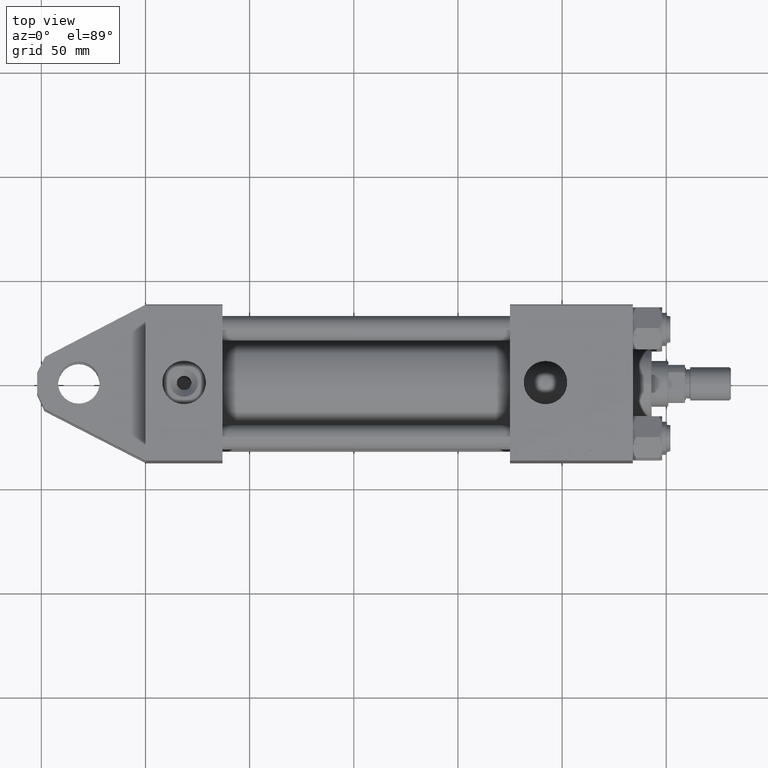
[diagram: clean part render]
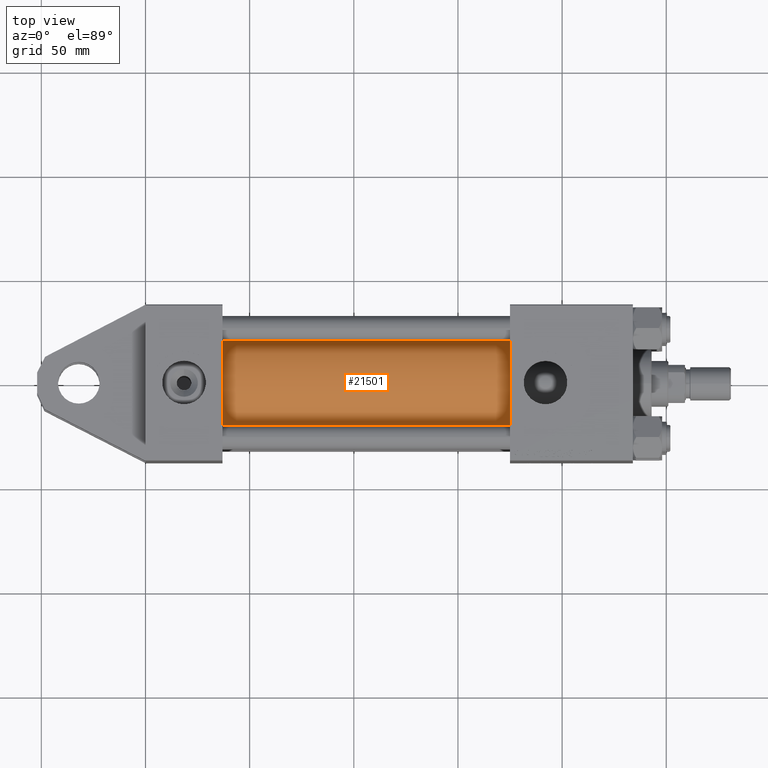
[diagram: same view with one face highlighted and labeled with its STEP entity id]
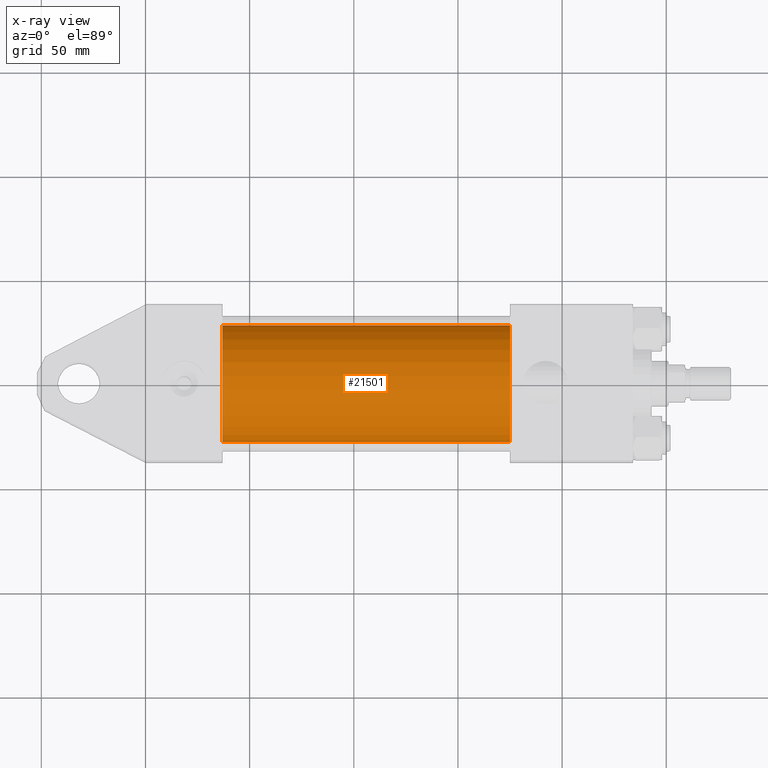
[diagram: x-ray of the same camera — body ghosted, the highlighted face saturated]
A machine part, top view. The second image highlights one B-rep face of the part: STEP entity #21501.
The next image is the same camera in x-ray: the body ghosted, the highlighted face saturated — about 0% of this face is hidden behind the body in this view.
In plain terms, the highlighted cylindrical surface (partial cylindrical patch) has radius 28 mm, axis along (-1, -0, 0).
Its self-contained STEP definition (entity closure, byte-faithful):
#4064 = EDGE_CURVE ( 'NONE', #9242, #27730, #26374, .T. ) ;
#5135 = ORIENTED_EDGE ( 'NONE', *, *, #16017, .T. ) ;
#6309 = CARTESIAN_POINT ( 'NONE',  ( 175.0000000000000284, -4.043591434102509780E-17, -28.00000000000000000 ) ) ;
#9137 = VERTEX_POINT ( 'NONE', #10559 ) ;
#9242 = VERTEX_POINT ( 'NONE', #16881 ) ;
#10030 = EDGE_CURVE ( 'NONE', #49548, #9242, #13061, .T. ) ;
#10559 = CARTESIAN_POINT ( 'NONE',  ( 37.00000000000000711, -3.469446951953614189E-15, 28.00000000000000000 ) ) ;
#11157 = ORIENTED_EDGE ( 'NONE', *, *, #10030, .F. ) ;
#13061 = CIRCLE ( 'NONE', #44218, 28.00000000000000000 ) ;
#15412 = EDGE_CURVE ( 'NONE', #49548, #9137, #36548, .T. ) ;
#16017 = EDGE_CURVE ( 'NONE', #9137, #27730, #22980, .T. ) ;
#16881 = CARTESIAN_POINT ( 'NONE',  ( 175.0000000000000284, -4.043591434102509780E-17, -28.00000000000000000 ) ) ;
#19596 = VECTOR ( 'NONE', #24157, 1000.000000000000000 ) ;
#19681 = CARTESIAN_POINT ( 'NONE',  ( 175.0000000000000284, -3.469446951953614189E-15, 0.000000000000000000 ) ) ;
#21299 = AXIS2_PLACEMENT_3D ( 'NONE', #45646, #33495, #49594 ) ;
#21501 = ADVANCED_FACE ( 'NONE', ( #27553 ), #31508, .T. ) ;
#21887 = EDGE_LOOP ( 'NONE', ( #39748, #11157, #47906, #5135 ) ) ;
#22427 = DIRECTION ( 'NONE',  ( -1.000000000000000000, -0.000000000000000000, -0.000000000000000000 ) ) ;
#22980 = CIRCLE ( 'NONE', #21299, 28.00000000000000000 ) ;
#24157 = DIRECTION ( 'NONE',  ( -1.000000000000000000, -0.000000000000000000, -0.000000000000000000 ) ) ;
#26374 = LINE ( 'NONE', #6309, #44179 ) ;
#27553 = FACE_OUTER_BOUND ( 'NONE', #21887, .T. ) ;
#27730 = VERTEX_POINT ( 'NONE', #33182 ) ;
#27819 = DIRECTION ( 'NONE',  ( 0.000000000000000000, 0.000000000000000000, 1.000000000000000000 ) ) ;
#31508 = CYLINDRICAL_SURFACE ( 'NONE', #43392, 28.00000000000000000 ) ;
#32320 = CARTESIAN_POINT ( 'NONE',  ( 175.0000000000000284, -3.469446951953614189E-15, 28.00000000000000000 ) ) ;
#33182 = CARTESIAN_POINT ( 'NONE',  ( 37.00000000000000711, -4.043591434102509780E-17, -28.00000000000000000 ) ) ;
#33495 = DIRECTION ( 'NONE',  ( 1.000000000000000000, -0.000000000000000000, 0.000000000000000000 ) ) ;
#35478 = DIRECTION ( 'NONE',  ( -1.000000000000000000, -0.000000000000000000, -0.000000000000000000 ) ) ;
#36520 = CARTESIAN_POINT ( 'NONE',  ( 175.0000000000000284, -3.469446951953614189E-15, 0.000000000000000000 ) ) ;
#36548 = LINE ( 'NONE', #32320, #19596 ) ;
#38508 = CARTESIAN_POINT ( 'NONE',  ( 175.0000000000000284, -3.469446951953614189E-15, 28.00000000000000000 ) ) ;
#39732 = DIRECTION ( 'NONE',  ( 1.000000000000000000, 0.000000000000000000, 0.000000000000000000 ) ) ;
#39748 = ORIENTED_EDGE ( 'NONE', *, *, #4064, .F. ) ;
#43392 = AXIS2_PLACEMENT_3D ( 'NONE', #36520, #35478, #27819 ) ;
#44179 = VECTOR ( 'NONE', #22427, 1000.000000000000000 ) ;
#44218 = AXIS2_PLACEMENT_3D ( 'NONE', #19681, #39732, #51864 ) ;
#45646 = CARTESIAN_POINT ( 'NONE',  ( 37.00000000000000711, -3.469446951953614189E-15, 0.000000000000000000 ) ) ;
#47906 = ORIENTED_EDGE ( 'NONE', *, *, #15412, .T. ) ;
#49548 = VERTEX_POINT ( 'NONE', #38508 ) ;
#49594 = DIRECTION ( 'NONE',  ( 0.000000000000000000, 0.000000000000000000, 1.000000000000000000 ) ) ;
#51864 = DIRECTION ( 'NONE',  ( 0.000000000000000000, 0.000000000000000000, -1.000000000000000000 ) ) ;